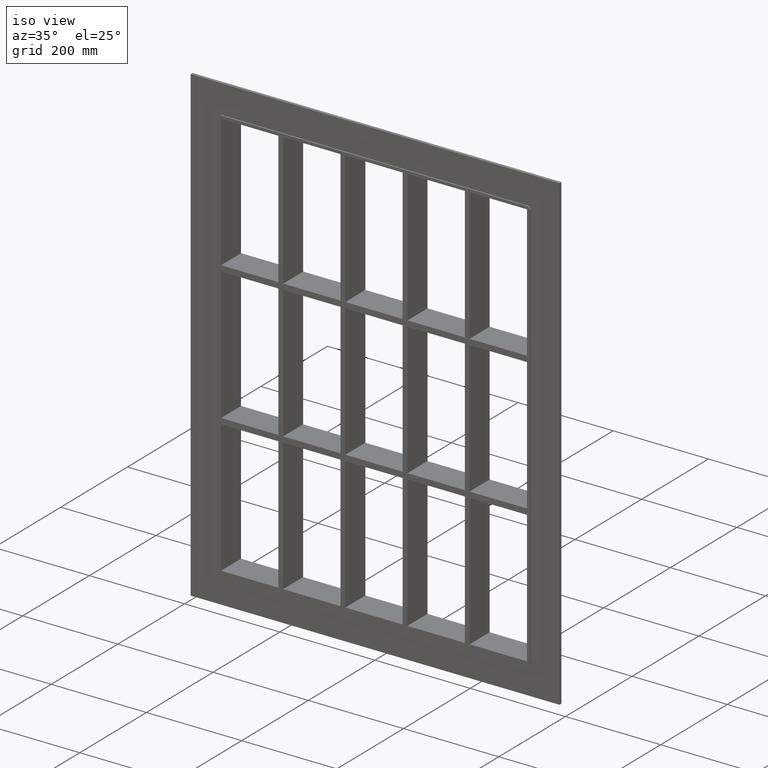
[diagram: clean part render]
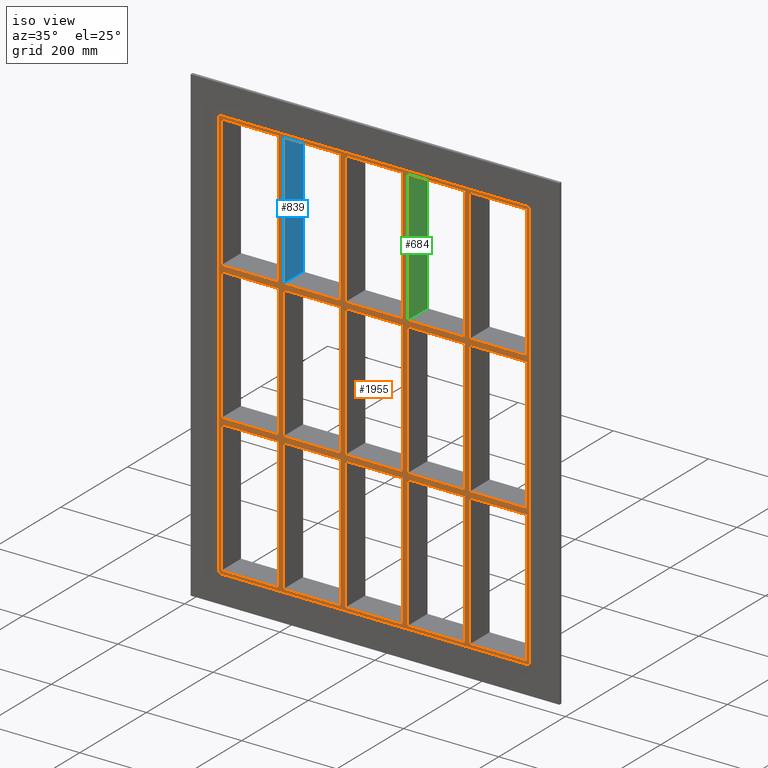
[diagram: same view with three faces highlighted in distinct colors, each labeled with its STEP entity id]
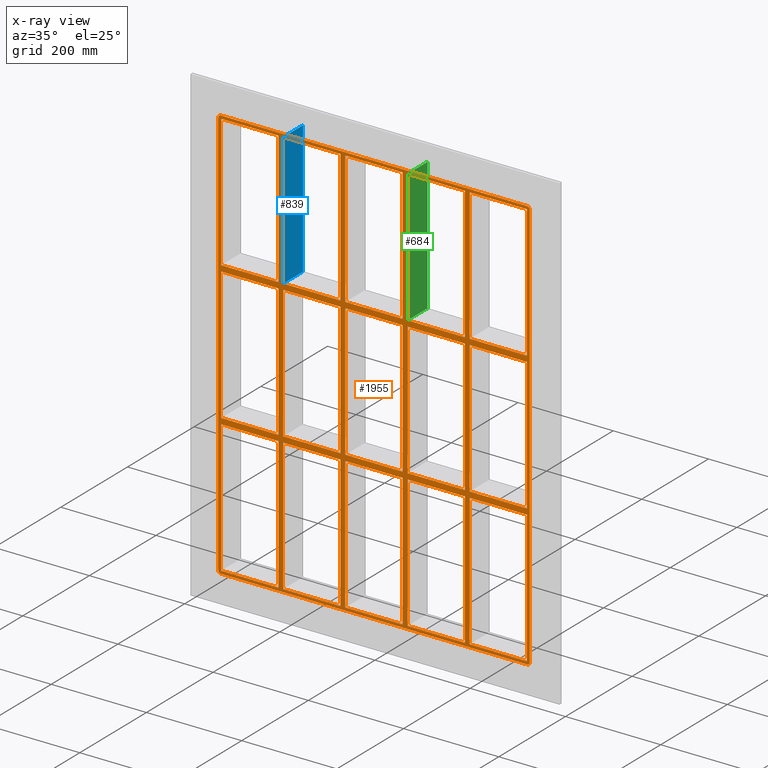
[diagram: x-ray of the same camera — body ghosted, the three highlighted faces saturated]
A machine part, iso view with three faces highlighted in distinct colors.
The next image is the same camera in x-ray (body ghosted, the three faces saturated) — at least one of them is partly hidden behind the body in this view.
Their STEP definitions:

[orange] entity #1955 — the highlighted planar face has unit normal (0, 1, 0).
#73=CARTESIAN_POINT('',(-200.75000000000128,-3.0,138.99999999999068));
#74=VERTEX_POINT('',#73);
#83=CARTESIAN_POINT('',(-321.24999999999955,-3.0,138.99999999999068));
#84=VERTEX_POINT('',#83);
#85=CARTESIAN_POINT('',(-200.75000000000136,-3.0,138.99999999999068));
#86=DIRECTION('',(-1.0,0.0,0.0));
#87=VECTOR('',#86,120.49999999999818);
#88=LINE('',#85,#87);
#89=EDGE_CURVE('',#74,#84,#88,.T.);
#113=CARTESIAN_POINT('',(-70.250000000001265,-3.0,138.99999999999071));
#114=VERTEX_POINT('',#113);
#123=CARTESIAN_POINT('',(-190.75000000000728,-3.0,138.99999999999071));
#124=VERTEX_POINT('',#123);
#125=CARTESIAN_POINT('',(-70.250000000001251,-3.0,138.99999999999071));
#126=DIRECTION('',(-1.0,0.0,0.0));
#127=VECTOR('',#126,120.50000000000603);
#128=LINE('',#125,#127);
#129=EDGE_CURVE('',#114,#124,#128,.T.);
#153=CARTESIAN_POINT('',(60.249999999998742,-3.0,138.99999999999071));
#154=VERTEX_POINT('',#153);
#163=CARTESIAN_POINT('',(-60.250000000007304,-3.0,138.99999999999071));
#164=VERTEX_POINT('',#163);
#165=CARTESIAN_POINT('',(60.249999999998749,-3.0,138.99999999999071));
#166=DIRECTION('',(-1.0,0.0,0.0));
#167=VECTOR('',#166,120.50000000000603);
#168=LINE('',#165,#167);
#169=EDGE_CURVE('',#154,#164,#168,.T.);
#195=CARTESIAN_POINT('',(200.74999999999278,-3.0,138.99999999999071));
#196=VERTEX_POINT('',#195);
#211=CARTESIAN_POINT('',(321.25,-3.0,138.99999999999073));
#212=VERTEX_POINT('',#211);
#219=CARTESIAN_POINT('',(321.25,-3.0,138.99999999999073));
#220=DIRECTION('',(-1.0,0.0,0.0));
#221=VECTOR('',#220,120.50000000000722);
#222=LINE('',#219,#221);
#223=EDGE_CURVE('',#212,#196,#222,.T.);
#233=CARTESIAN_POINT('',(190.74999999999875,-3.0,138.99999999999071));
#234=VERTEX_POINT('',#233);
#243=CARTESIAN_POINT('',(70.249999999992738,-3.0,138.99999999999071));
#244=VERTEX_POINT('',#243);
#245=CARTESIAN_POINT('',(190.74999999999875,-3.0,138.99999999999073));
#246=DIRECTION('',(-1.0,0.0,0.0));
#247=VECTOR('',#246,120.50000000000603);
#248=LINE('',#245,#247);
#249=EDGE_CURVE('',#234,#244,#248,.T.);
#275=CARTESIAN_POINT('',(-200.75000000000128,-3.0,150.99999999999994));
#276=VERTEX_POINT('',#275);
#291=CARTESIAN_POINT('',(-321.24999999999955,-3.0,150.99999999999994));
#292=VERTEX_POINT('',#291);
#299=CARTESIAN_POINT('',(-321.24999999999955,-3.0,150.99999999999994));
#300=DIRECTION('',(1.0,0.0,0.0));
#301=VECTOR('',#300,120.49999999999829);
#302=LINE('',#299,#301);
#303=EDGE_CURVE('',#292,#276,#302,.T.);
#313=CARTESIAN_POINT('',(200.74999999999278,-3.0,150.99999999999994));
#314=VERTEX_POINT('',#313);
#323=CARTESIAN_POINT('',(321.25,-3.0,150.99999999999994));
#324=VERTEX_POINT('',#323);
#325=CARTESIAN_POINT('',(200.74999999999284,-3.0,150.99999999999994));
#326=DIRECTION('',(1.0,0.0,0.0));
#327=VECTOR('',#326,120.50000000000716);
#328=LINE('',#325,#327);
#329=EDGE_CURVE('',#314,#324,#328,.T.);
#355=CARTESIAN_POINT('',(-70.250000000001265,-3.0,150.99999999999994));
#356=VERTEX_POINT('',#355);
#371=CARTESIAN_POINT('',(-190.75000000000728,-3.0,150.99999999999994));
#372=VERTEX_POINT('',#371);
#379=CARTESIAN_POINT('',(-190.75000000000725,-3.0,150.99999999999994));
#380=DIRECTION('',(1.0,0.0,0.0));
#381=VECTOR('',#380,120.500000000006);
#382=LINE('',#379,#381);
#383=EDGE_CURVE('',#372,#356,#382,.T.);
#395=CARTESIAN_POINT('',(60.249999999998707,-3.0,150.99999999999994));
#396=VERTEX_POINT('',#395);
#411=CARTESIAN_POINT('',(-60.250000000007269,-3.0,150.99999999999994));
#412=VERTEX_POINT('',#411);
#419=CARTESIAN_POINT('',(-60.250000000007219,-3.0,150.99999999999994));
#420=DIRECTION('',(1.0,0.0,0.0));
#421=VECTOR('',#420,120.50000000000597);
#422=LINE('',#419,#421);
#423=EDGE_CURVE('',#412,#396,#422,.T.);
#435=CARTESIAN_POINT('',(190.74999999999875,-3.0,150.99999999999994));
#436=VERTEX_POINT('',#435);
#451=CARTESIAN_POINT('',(70.249999999992738,-3.0,150.99999999999994));
#452=VERTEX_POINT('',#451);
#459=CARTESIAN_POINT('',(70.249999999992781,-3.0,150.99999999999994));
#460=DIRECTION('',(1.0,0.0,0.0));
#461=VECTOR('',#460,120.50000000000597);
#462=LINE('',#459,#461);
#463=EDGE_CURVE('',#452,#436,#462,.T.);
#482=CARTESIAN_POINT('',(-321.24999999999994,-3.0,429.00000000000006));
#483=VERTEX_POINT('',#482);
#490=CARTESIAN_POINT('',(-321.25,-3.0,151.0));
#491=DIRECTION('',(0.0,0.0,1.0));
#492=VECTOR('',#491,278.00000000000011);
#493=LINE('',#490,#492);
#494=EDGE_CURVE('',#292,#483,#493,.T.);
#513=CARTESIAN_POINT('',(321.25,-3.0,-139.00000000000006));
#514=VERTEX_POINT('',#513);
#521=CARTESIAN_POINT('',(321.25000000000006,-3.0,138.99999999999073));
#522=DIRECTION('',(0.0,0.0,-1.0));
#523=VECTOR('',#522,277.99999999999079);
#524=LINE('',#521,#523);
#525=EDGE_CURVE('',#212,#514,#524,.T.);
#536=CARTESIAN_POINT('',(321.25000000000006,-3.0,429.00000000000006));
#537=VERTEX_POINT('',#536);
#538=CARTESIAN_POINT('',(321.25000000000006,-3.0,429.00000000000006));
#539=DIRECTION('',(0.0,0.0,-1.0));
#540=VECTOR('',#539,278.00000000000011);
#541=LINE('',#538,#540);
#542=EDGE_CURVE('',#537,#324,#541,.T.);
#567=CARTESIAN_POINT('',(190.74999999999875,-3.0,429.00000000000006));
#568=VERTEX_POINT('',#567);
#569=CARTESIAN_POINT('',(190.74999999999875,-3.0,150.99999999999994));
#570=DIRECTION('',(0.0,0.0,1.0));
#571=VECTOR('',#570,278.00000000000011);
#572=LINE('',#569,#571);
#573=EDGE_CURVE('',#436,#568,#572,.T.);
#606=CARTESIAN_POINT('',(200.74999999999278,-3.0,429.00000000000006));
#607=VERTEX_POINT('',#606);
#614=CARTESIAN_POINT('',(200.74999999999278,-3.0,429.00000000000006));
#615=DIRECTION('',(0.0,0.0,-1.0));
#616=VECTOR('',#615,278.00000000000011);
#617=LINE('',#614,#616);
#618=EDGE_CURVE('',#607,#314,#617,.T.);
#629=CARTESIAN_POINT('',(60.249999999998707,-3.0,429.00000000000006));
#630=VERTEX_POINT('',#629);
#631=CARTESIAN_POINT('',(60.249999999998728,-3.0,150.99999999999994));
#632=DIRECTION('',(0.0,0.0,1.0));
#633=VECTOR('',#632,278.00000000000011);
#634=LINE('',#631,#633);
#635=EDGE_CURVE('',#396,#630,#634,.T.);
#668=CARTESIAN_POINT('',(70.249999999992738,-3.0,429.00000000000006));
#669=VERTEX_POINT('',#668);
#676=CARTESIAN_POINT('',(70.249999999992738,-3.0,429.00000000000006));
#677=DIRECTION('',(0.0,0.0,-1.0));
#678=VECTOR('',#677,278.00000000000011);
#679=LINE('',#676,#678);
#680=EDGE_CURVE('',#669,#452,#679,.T.);
#691=CARTESIAN_POINT('',(-70.250000000001307,-3.0,429.00000000000006));
#692=VERTEX_POINT('',#691);
#693=CARTESIAN_POINT('',(-70.250000000001265,-3.0,150.99999999999994));
#694=DIRECTION('',(0.0,0.0,1.0));
#695=VECTOR('',#694,278.00000000000011);
#696=LINE('',#693,#695);
#697=EDGE_CURVE('',#356,#692,#696,.T.);
#730=CARTESIAN_POINT('',(-60.250000000007269,-3.0,429.00000000000006));
#731=VERTEX_POINT('',#730);
#738=CARTESIAN_POINT('',(-60.250000000007269,-3.0,429.00000000000006));
#739=DIRECTION('',(0.0,0.0,-1.0));
#740=VECTOR('',#739,278.00000000000011);
#741=LINE('',#738,#740);
#742=EDGE_CURVE('',#731,#412,#741,.T.);
#753=CARTESIAN_POINT('',(-200.75000000000131,-3.0,429.00000000000006));
#754=VERTEX_POINT('',#753);
#755=CARTESIAN_POINT('',(-200.75000000000131,-3.0,150.99999999999994));
#756=DIRECTION('',(0.0,0.0,1.0));
#757=VECTOR('',#756,278.00000000000011);
#758=LINE('',#755,#757);
#759=EDGE_CURVE('',#276,#754,#758,.T.);
#792=CARTESIAN_POINT('',(-200.75000000000125,-3.0,-139.00000000000006));
#793=VERTEX_POINT('',#792);
#800=CARTESIAN_POINT('',(-200.75000000000128,-3.0,-139.00000000000006));
#801=DIRECTION('',(0.0,0.0,1.0));
#802=VECTOR('',#801,277.99999999999068);
#803=LINE('',#800,#802);
#804=EDGE_CURVE('',#793,#74,#803,.T.);
#823=CARTESIAN_POINT('',(-190.75000000000728,-3.0,429.00000000000006));
#824=VERTEX_POINT('',#823);
#831=CARTESIAN_POINT('',(-190.75000000000728,-3.0,429.00000000000006));
#832=DIRECTION('',(0.0,0.0,-1.0));
#833=VECTOR('',#832,278.00000000000011);
#834=LINE('',#831,#833);
#835=EDGE_CURVE('',#824,#372,#834,.T.);
#1259=CARTESIAN_POINT('',(190.74999999999878,-3.0,-139.00000000000006));
#1260=VERTEX_POINT('',#1259);
#1267=CARTESIAN_POINT('',(190.74999999999878,-3.0,-139.00000000000006));
#1268=DIRECTION('',(0.0,0.0,1.0));
#1269=VECTOR('',#1268,277.99999999999068);
#1270=LINE('',#1267,#1269);
#1271=EDGE_CURVE('',#1260,#234,#1270,.T.);
#1281=CARTESIAN_POINT('',(190.74999999999878,-3.0,-151.00000000000927));
#1282=VERTEX_POINT('',#1281);
#1290=CARTESIAN_POINT('',(190.74999999999881,-3.0,-429.00000000000006));
#1291=VERTEX_POINT('',#1290);
#1298=CARTESIAN_POINT('',(190.74999999999881,-3.0,-429.00000000000006));
#1299=DIRECTION('',(0.0,0.0,1.0));
#1300=VECTOR('',#1299,277.99999999999079);
#1301=LINE('',#1298,#1300);
#1302=EDGE_CURVE('',#1291,#1282,#1301,.T.);
#1313=CARTESIAN_POINT('',(200.74999999999278,-3.0,-139.00000000000006));
#1314=VERTEX_POINT('',#1313);
#1315=CARTESIAN_POINT('',(200.74999999999278,-3.0,138.99999999999073));
#1316=DIRECTION('',(0.0,0.0,-1.0));
#1317=VECTOR('',#1316,277.99999999999079);
#1318=LINE('',#1315,#1317);
#1319=EDGE_CURVE('',#196,#1314,#1318,.T.);
#1336=CARTESIAN_POINT('',(200.74999999999278,-3.0,-151.00000000000927));
#1337=VERTEX_POINT('',#1336);
#1344=CARTESIAN_POINT('',(200.74999999999278,-3.0,-428.99999999998431));
#1345=VERTEX_POINT('',#1344);
#1346=CARTESIAN_POINT('',(200.74999999999278,-3.0,-151.00000000000927));
#1347=DIRECTION('',(0.0,0.0,-1.0));
#1348=VECTOR('',#1347,277.99999999997499);
#1349=LINE('',#1346,#1348);
#1350=EDGE_CURVE('',#1337,#1345,#1349,.T.);
#1369=CARTESIAN_POINT('',(60.249999999998749,-3.0,-139.00000000000006));
#1370=VERTEX_POINT('',#1369);
#1377=CARTESIAN_POINT('',(60.249999999998757,-3.0,-139.00000000000006));
#1378=DIRECTION('',(0.0,0.0,1.0));
#1379=VECTOR('',#1378,277.99999999999068);
#1380=LINE('',#1377,#1379);
#1381=EDGE_CURVE('',#1370,#154,#1380,.T.);
#1391=CARTESIAN_POINT('',(60.249999999998749,-3.0,-151.00000000000929));
#1392=VERTEX_POINT('',#1391);
#1400=CARTESIAN_POINT('',(60.249999999998778,-3.0,-429.00000000000006));
#1401=VERTEX_POINT('',#1400);
#1408=CARTESIAN_POINT('',(60.249999999998778,-3.0,-429.00000000000006));
#1409=DIRECTION('',(0.0,0.0,1.0));
#1410=VECTOR('',#1409,277.99999999999079);
#1411=LINE('',#1408,#1410);
#1412=EDGE_CURVE('',#1401,#1392,#1411,.T.);
#1423=CARTESIAN_POINT('',(70.249999999992738,-3.0,-139.00000000000006));
#1424=VERTEX_POINT('',#1423);
#1425=CARTESIAN_POINT('',(70.249999999992738,-3.0,138.99999999999073));
#1426=DIRECTION('',(0.0,0.0,-1.0));
#1427=VECTOR('',#1426,277.99999999999079);
#1428=LINE('',#1425,#1427);
#1429=EDGE_CURVE('',#244,#1424,#1428,.T.);
#1446=CARTESIAN_POINT('',(70.249999999992738,-3.0,-151.00000000000927));
#1447=VERTEX_POINT('',#1446);
#1454=CARTESIAN_POINT('',(70.249999999992738,-3.0,-428.99999999998431));
#1455=VERTEX_POINT('',#1454);
#1456=CARTESIAN_POINT('',(70.249999999992738,-3.0,-151.00000000000927));
#1457=DIRECTION('',(0.0,0.0,-1.0));
#1458=VECTOR('',#1457,277.99999999997499);
#1459=LINE('',#1456,#1458);
#1460=EDGE_CURVE('',#1447,#1455,#1459,.T.);
#1479=CARTESIAN_POINT('',(-70.250000000001251,-3.0,-139.00000000000006));
#1480=VERTEX_POINT('',#1479);
#1487=CARTESIAN_POINT('',(-70.250000000001251,-3.0,-139.00000000000006));
#1488=DIRECTION('',(0.0,0.0,1.0));
#1489=VECTOR('',#1488,277.99999999999068);
#1490=LINE('',#1487,#1489);
#1491=EDGE_CURVE('',#1480,#114,#1490,.T.);
#1501=CARTESIAN_POINT('',(-70.250000000001251,-3.0,-151.00000000000929));
#1502=VERTEX_POINT('',#1501);
#1510=CARTESIAN_POINT('',(-70.250000000001222,-3.0,-429.00000000000006));
#1511=VERTEX_POINT('',#1510);
#1518=CARTESIAN_POINT('',(-70.250000000001222,-3.0,-429.00000000000006));
#1519=DIRECTION('',(0.0,0.0,1.0));
#1520=VECTOR('',#1519,277.99999999999079);
#1521=LINE('',#1518,#1520);
#1522=EDGE_CURVE('',#1511,#1502,#1521,.T.);
#1533=CARTESIAN_POINT('',(-60.250000000007269,-3.0,-139.00000000000006));
#1534=VERTEX_POINT('',#1533);
#1535=CARTESIAN_POINT('',(-60.250000000007269,-3.0,138.99999999999068));
#1536=DIRECTION('',(0.0,0.0,-1.0));
#1537=VECTOR('',#1536,277.99999999999073);
#1538=LINE('',#1535,#1537);
#1539=EDGE_CURVE('',#164,#1534,#1538,.T.);
#1556=CARTESIAN_POINT('',(-60.250000000007269,-3.0,-151.00000000000927));
#1557=VERTEX_POINT('',#1556);
#1564=CARTESIAN_POINT('',(-60.250000000007269,-3.0,-428.99999999998431));
#1565=VERTEX_POINT('',#1564);
#1566=CARTESIAN_POINT('',(-60.250000000007269,-3.0,-151.00000000000927));
#1567=DIRECTION('',(0.0,0.0,-1.0));
#1568=VECTOR('',#1567,277.99999999997499);
#1569=LINE('',#1566,#1568);
#1570=EDGE_CURVE('',#1557,#1565,#1569,.T.);
#1589=CARTESIAN_POINT('',(-190.75000000000728,-3.0,-428.99999999998431));
#1590=VERTEX_POINT('',#1589);
#1597=CARTESIAN_POINT('',(-70.250000000001222,-3.0,-429.00000000000006));
#1598=DIRECTION('',(-1.0,0.0,0.0));
#1599=VECTOR('',#1598,120.50000000000605);
#1600=LINE('',#1597,#1599);
#1601=EDGE_CURVE('',#1511,#1590,#1600,.T.);
#1614=CARTESIAN_POINT('',(60.249999999998778,-3.0,-429.00000000000006));
#1615=DIRECTION('',(-1.0,0.0,0.0));
#1616=VECTOR('',#1615,120.50000000000605);
#1617=LINE('',#1614,#1616);
#1618=EDGE_CURVE('',#1401,#1565,#1617,.T.);
#1631=CARTESIAN_POINT('',(190.74999999999881,-3.0,-429.00000000000006));
#1632=DIRECTION('',(-1.0,0.0,0.0));
#1633=VECTOR('',#1632,120.50000000000607);
#1634=LINE('',#1631,#1633);
#1635=EDGE_CURVE('',#1291,#1455,#1634,.T.);
#1646=CARTESIAN_POINT('',(321.25000000000006,-3.0,-429.00000000000006));
#1647=VERTEX_POINT('',#1646);
#1648=CARTESIAN_POINT('',(321.25000000000006,-3.0,-429.00000000000006));
#1649=DIRECTION('',(-1.0,0.0,0.0));
#1650=VECTOR('',#1649,120.50000000000728);
#1651=LINE('',#1648,#1650);
#1652=EDGE_CURVE('',#1647,#1345,#1651,.T.);
#1664=CARTESIAN_POINT('',(-7.118245E-014,-3.0,7.830186E-014));
#1665=DIRECTION('',(0.0,1.0,0.0));
#1666=DIRECTION('',(0.0,0.0,1.0));
#1667=AXIS2_PLACEMENT_3D('',#1664,#1665,#1666);
#1668=PLANE('',#1667);
#1669=CARTESIAN_POINT('',(327.24999999999994,-3.0,-428.99999999999989));
#1670=VERTEX_POINT('',#1669);
#1671=CARTESIAN_POINT('',(321.25,-3.0,-435.0));
#1672=VERTEX_POINT('',#1671);
#1673=CARTESIAN_POINT('',(321.25,-3.0,-428.99999999999989));
#1674=DIRECTION('',(0.0,1.0,0.0));
#1675=DIRECTION('',(0.707106781186539,0.0,-0.707106781186556));
#1676=AXIS2_PLACEMENT_3D('',#1673,#1674,#1675);
#1677=CIRCLE('',#1676,6.000000000000001);
#1678=EDGE_CURVE('',#1670,#1672,#1677,.T.);
#1679=ORIENTED_EDGE('',*,*,#1678,.F.);
#1680=CARTESIAN_POINT('',(327.24999999999994,-3.0,429.00000000000011));
#1681=VERTEX_POINT('',#1680);
#1682=CARTESIAN_POINT('',(327.24999999999994,-3.0,-428.99999999999989));
#1683=DIRECTION('',(0.0,0.0,1.0));
#1684=VECTOR('',#1683,858.0);
#1685=LINE('',#1682,#1684);
#1686=EDGE_CURVE('',#1670,#1681,#1685,.T.);
#1687=ORIENTED_EDGE('',*,*,#1686,.T.);
#1688=CARTESIAN_POINT('',(321.24999999999989,-3.0,435.00000000000011));
#1689=VERTEX_POINT('',#1688);
#1690=CARTESIAN_POINT('',(321.24999999999989,-3.0,429.00000000000011));
#1691=DIRECTION('',(0.0,1.0,0.0));
#1692=DIRECTION('',(0.707106781186547,0.0,0.707106781186547));
#1693=AXIS2_PLACEMENT_3D('',#1690,#1691,#1692);
#1694=CIRCLE('',#1693,6.0);
#1695=EDGE_CURVE('',#1689,#1681,#1694,.T.);
#1696=ORIENTED_EDGE('',*,*,#1695,.F.);
#1697=CARTESIAN_POINT('',(-321.25000000000011,-3.0,435.00000000000011));
#1698=VERTEX_POINT('',#1697);
#1699=CARTESIAN_POINT('',(321.24999999999989,-3.0,435.00000000000011));
#1700=DIRECTION('',(-1.0,0.0,0.0));
#1701=VECTOR('',#1700,642.5);
#1702=LINE('',#1699,#1701);
#1703=EDGE_CURVE('',#1689,#1698,#1702,.T.);
#1704=ORIENTED_EDGE('',*,*,#1703,.T.);
#1705=CARTESIAN_POINT('',(-327.25000000000011,-3.0,429.00000000000006));
#1706=VERTEX_POINT('',#1705);
#1707=CARTESIAN_POINT('',(-321.25000000000011,-3.0,429.00000000000006));
#1708=DIRECTION('',(0.0,1.0,0.0));
#1709=DIRECTION('',(-0.707106781186539,0.0,0.707106781186556));
#1710=AXIS2_PLACEMENT_3D('',#1707,#1708,#1709);
#1711=CIRCLE('',#1710,6.000000000000001);
#1712=EDGE_CURVE('',#1706,#1698,#1711,.T.);
#1713=ORIENTED_EDGE('',*,*,#1712,.F.);
#1714=CARTESIAN_POINT('',(-327.25000000000011,-3.0,-429.00000000000006));
#1715=VERTEX_POINT('',#1714);
#1716=CARTESIAN_POINT('',(-327.25000000000011,-3.0,429.0));
#1717=DIRECTION('',(0.0,0.0,-1.0));
#1718=VECTOR('',#1717,858.0);
#1719=LINE('',#1716,#1718);
#1720=EDGE_CURVE('',#1706,#1715,#1719,.T.);
#1721=ORIENTED_EDGE('',*,*,#1720,.T.);
#1722=CARTESIAN_POINT('',(-321.25,-3.0,-435.0));
#1723=VERTEX_POINT('',#1722);
#1724=CARTESIAN_POINT('',(-321.25,-3.0,-429.00000000000006));
#1725=DIRECTION('',(0.0,1.0,0.0));
#1726=DIRECTION('',(-0.707106781186556,0.0,-0.707106781186539));
#1727=AXIS2_PLACEMENT_3D('',#1724,#1725,#1726);
#1728=CIRCLE('',#1727,6.000000000000001);
#1729=EDGE_CURVE('',#1723,#1715,#1728,.T.);
#1730=ORIENTED_EDGE('',*,*,#1729,.F.);
#1731=CARTESIAN_POINT('',(-321.25000000000006,-3.0,-435.0));
#1732=DIRECTION('',(1.0,0.0,0.0));
#1733=VECTOR('',#1732,642.5);
#1734=LINE('',#1731,#1733);
#1735=EDGE_CURVE('',#1723,#1672,#1734,.T.);
#1736=ORIENTED_EDGE('',*,*,#1735,.T.);
#1737=EDGE_LOOP('',(#1679,#1687,#1696,#1704,#1713,#1721,#1730,#1736));
#1738=FACE_OUTER_BOUND('',#1737,.T.);
#1739=ORIENTED_EDGE('',*,*,#494,.T.);
#1740=CARTESIAN_POINT('',(-321.24999999999989,-3.0,429.00000000000006));
#1741=DIRECTION('',(1.0,0.0,0.0));
#1742=VECTOR('',#1741,120.49999999999858);
#1743=LINE('',#1740,#1742);
#1744=EDGE_CURVE('',#483,#754,#1743,.T.);
#1745=ORIENTED_EDGE('',*,*,#1744,.T.);
#1746=ORIENTED_EDGE('',*,*,#759,.F.);
#1747=ORIENTED_EDGE('',*,*,#303,.F.);
#1748=EDGE_LOOP('',(#1739,#1745,#1746,#1747));
#1749=FACE_BOUND('',#1748,.T.);
#1750=ORIENTED_EDGE('',*,*,#525,.T.);
#1751=CARTESIAN_POINT('',(200.74999999999284,-3.0,-139.00000000000006));
#1752=DIRECTION('',(1.0,0.0,0.0));
#1753=VECTOR('',#1752,120.50000000000716);
#1754=LINE('',#1751,#1753);
#1755=EDGE_CURVE('',#1314,#514,#1754,.T.);
#1756=ORIENTED_EDGE('',*,*,#1755,.F.);
#1757=ORIENTED_EDGE('',*,*,#1319,.F.);
#1758=ORIENTED_EDGE('',*,*,#223,.F.);
#1759=EDGE_LOOP('',(#1750,#1756,#1757,#1758));
#1760=FACE_BOUND('',#1759,.T.);
#1761=ORIENTED_EDGE('',*,*,#1271,.F.);
#1762=CARTESIAN_POINT('',(70.249999999992781,-3.0,-139.00000000000006));
#1763=DIRECTION('',(1.0,0.0,0.0));
#1764=VECTOR('',#1763,120.50000000000597);
#1765=LINE('',#1762,#1764);
#1766=EDGE_CURVE('',#1424,#1260,#1765,.T.);
#1767=ORIENTED_EDGE('',*,*,#1766,.F.);
#1768=ORIENTED_EDGE('',*,*,#1429,.F.);
#1769=ORIENTED_EDGE('',*,*,#249,.F.);
#1770=EDGE_LOOP('',(#1761,#1767,#1768,#1769));
#1771=FACE_BOUND('',#1770,.T.);
#1772=ORIENTED_EDGE('',*,*,#1381,.F.);
#1773=CARTESIAN_POINT('',(-60.250000000007219,-3.0,-139.00000000000006));
#1774=DIRECTION('',(1.0,0.0,0.0));
#1775=VECTOR('',#1774,120.50000000000603);
#1776=LINE('',#1773,#1775);
#1777=EDGE_CURVE('',#1534,#1370,#1776,.T.);
#1778=ORIENTED_EDGE('',*,*,#1777,.F.);
#1779=ORIENTED_EDGE('',*,*,#1539,.F.);
#1780=ORIENTED_EDGE('',*,*,#169,.F.);
#1781=EDGE_LOOP('',(#1772,#1778,#1779,#1780));
#1782=FACE_BOUND('',#1781,.T.);
#1783=ORIENTED_EDGE('',*,*,#1491,.F.);
#1784=CARTESIAN_POINT('',(-190.75000000000728,-3.0,-139.00000000000006));
#1785=VERTEX_POINT('',#1784);
#1786=CARTESIAN_POINT('',(-190.75000000000725,-3.0,-139.00000000000006));
#1787=DIRECTION('',(1.0,0.0,0.0));
#1788=VECTOR('',#1787,120.500000000006);
#1789=LINE('',#1786,#1788);
#1790=EDGE_CURVE('',#1785,#1480,#1789,.T.);
#1791=ORIENTED_EDGE('',*,*,#1790,.F.);
#1792=CARTESIAN_POINT('',(-190.75000000000728,-3.0,138.99999999999073));
#1793=DIRECTION('',(0.0,0.0,-1.0));
#1794=VECTOR('',#1793,277.99999999999079);
#1795=LINE('',#1792,#1794);
#1796=EDGE_CURVE('',#124,#1785,#1795,.T.);
#1797=ORIENTED_EDGE('',*,*,#1796,.F.);
#1798=ORIENTED_EDGE('',*,*,#129,.F.);
#1799=EDGE_LOOP('',(#1783,#1791,#1797,#1798));
#1800=FACE_BOUND('',#1799,.T.);
#1801=ORIENTED_EDGE('',*,*,#463,.F.);
#1802=ORIENTED_EDGE('',*,*,#680,.F.);
#1803=CARTESIAN_POINT('',(70.249999999992752,-3.0,429.00000000000006));
#1804=DIRECTION('',(1.0,0.0,0.0));
#1805=VECTOR('',#1804,120.50000000000597);
#1806=LINE('',#1803,#1805);
#1807=EDGE_CURVE('',#669,#568,#1806,.T.);
#1808=ORIENTED_EDGE('',*,*,#1807,.T.);
#1809=ORIENTED_EDGE('',*,*,#573,.F.);
#1810=EDGE_LOOP('',(#1801,#1802,#1808,#1809));
#1811=FACE_BOUND('',#1810,.T.);
#1812=ORIENTED_EDGE('',*,*,#423,.F.);
#1813=ORIENTED_EDGE('',*,*,#742,.F.);
#1814=CARTESIAN_POINT('',(-60.250000000007262,-3.0,429.00000000000006));
#1815=DIRECTION('',(1.0,0.0,0.0));
#1816=VECTOR('',#1815,120.50000000000598);
#1817=LINE('',#1814,#1816);
#1818=EDGE_CURVE('',#731,#630,#1817,.T.);
#1819=ORIENTED_EDGE('',*,*,#1818,.T.);
#1820=ORIENTED_EDGE('',*,*,#635,.F.);
#1821=EDGE_LOOP('',(#1812,#1813,#1819,#1820));
#1822=FACE_BOUND('',#1821,.T.);
#1823=ORIENTED_EDGE('',*,*,#383,.F.);
#1824=ORIENTED_EDGE('',*,*,#835,.F.);
#1825=CARTESIAN_POINT('',(-190.75000000000728,-3.0,429.00000000000006));
#1826=DIRECTION('',(1.0,0.0,0.0));
#1827=VECTOR('',#1826,120.50000000000598);
#1828=LINE('',#1825,#1827);
#1829=EDGE_CURVE('',#824,#692,#1828,.T.);
#1830=ORIENTED_EDGE('',*,*,#1829,.T.);
#1831=ORIENTED_EDGE('',*,*,#697,.F.);
#1832=EDGE_LOOP('',(#1823,#1824,#1830,#1831));
#1833=FACE_BOUND('',#1832,.T.);
#1834=ORIENTED_EDGE('',*,*,#89,.F.);
#1835=ORIENTED_EDGE('',*,*,#804,.F.);
#1836=CARTESIAN_POINT('',(-321.24999999999955,-3.0,-139.00000000000006));
#1837=VERTEX_POINT('',#1836);
#1838=CARTESIAN_POINT('',(-321.24999999999955,-3.0,-139.00000000000006));
#1839=DIRECTION('',(1.0,0.0,0.0));
#1840=VECTOR('',#1839,120.49999999999835);
#1841=LINE('',#1838,#1840);
#1842=EDGE_CURVE('',#1837,#793,#1841,.T.);
#1843=ORIENTED_EDGE('',*,*,#1842,.F.);
#1844=CARTESIAN_POINT('',(-321.25,-3.0,-139.00000000000006));
#1845=DIRECTION('',(0.0,0.0,1.0));
#1846=VECTOR('',#1845,277.99999999999073);
#1847=LINE('',#1844,#1846);
#1848=EDGE_CURVE('',#1837,#84,#1847,.T.);
#1849=ORIENTED_EDGE('',*,*,#1848,.T.);
#1850=EDGE_LOOP('',(#1834,#1835,#1843,#1849));
#1851=FACE_BOUND('',#1850,.T.);
#1852=ORIENTED_EDGE('',*,*,#329,.F.);
#1853=ORIENTED_EDGE('',*,*,#618,.F.);
#1854=CARTESIAN_POINT('',(200.74999999999275,-3.0,429.00000000000006));
#1855=DIRECTION('',(1.0,0.0,0.0));
#1856=VECTOR('',#1855,120.50000000000736);
#1857=LINE('',#1854,#1856);
#1858=EDGE_CURVE('',#607,#537,#1857,.T.);
#1859=ORIENTED_EDGE('',*,*,#1858,.T.);
#1860=ORIENTED_EDGE('',*,*,#542,.T.);
#1861=EDGE_LOOP('',(#1852,#1853,#1859,#1860));
#1862=FACE_BOUND('',#1861,.T.);
#1863=ORIENTED_EDGE('',*,*,#1635,.T.);
#1864=ORIENTED_EDGE('',*,*,#1460,.F.);
#1865=CARTESIAN_POINT('',(190.74999999999878,-3.0,-151.00000000000927));
#1866=DIRECTION('',(-1.0,0.0,0.0));
#1867=VECTOR('',#1866,120.50000000000605);
#1868=LINE('',#1865,#1867);
#1869=EDGE_CURVE('',#1282,#1447,#1868,.T.);
#1870=ORIENTED_EDGE('',*,*,#1869,.F.);
#1871=ORIENTED_EDGE('',*,*,#1302,.F.);
#1872=EDGE_LOOP('',(#1863,#1864,#1870,#1871));
#1873=FACE_BOUND('',#1872,.T.);
#1874=ORIENTED_EDGE('',*,*,#1618,.T.);
#1875=ORIENTED_EDGE('',*,*,#1570,.F.);
#1876=CARTESIAN_POINT('',(60.249999999998749,-3.0,-151.00000000000929));
#1877=DIRECTION('',(-1.0,0.0,0.0));
#1878=VECTOR('',#1877,120.50000000000603);
#1879=LINE('',#1876,#1878);
#1880=EDGE_CURVE('',#1392,#1557,#1879,.T.);
#1881=ORIENTED_EDGE('',*,*,#1880,.F.);
#1882=ORIENTED_EDGE('',*,*,#1412,.F.);
#1883=EDGE_LOOP('',(#1874,#1875,#1881,#1882));
#1884=FACE_BOUND('',#1883,.T.);
#1885=ORIENTED_EDGE('',*,*,#1601,.T.);
#1886=CARTESIAN_POINT('',(-190.75000000000728,-3.0,-151.00000000000929));
#1887=VERTEX_POINT('',#1886);
#1888=CARTESIAN_POINT('',(-190.75000000000728,-3.0,-151.00000000000927));
#1889=DIRECTION('',(0.0,0.0,-1.0));
#1890=VECTOR('',#1889,277.99999999997499);
#1891=LINE('',#1888,#1890);
#1892=EDGE_CURVE('',#1887,#1590,#1891,.T.);
#1893=ORIENTED_EDGE('',*,*,#1892,.F.);
#1894=CARTESIAN_POINT('',(-70.250000000001251,-3.0,-151.00000000000929));
#1895=DIRECTION('',(-1.0,0.0,0.0));
#1896=VECTOR('',#1895,120.50000000000603);
#1897=LINE('',#1894,#1896);
#1898=EDGE_CURVE('',#1502,#1887,#1897,.T.);
#1899=ORIENTED_EDGE('',*,*,#1898,.F.);
#1900=ORIENTED_EDGE('',*,*,#1522,.F.);
#1901=EDGE_LOOP('',(#1885,#1893,#1899,#1900));
#1902=FACE_BOUND('',#1901,.T.);
#1903=ORIENTED_EDGE('',*,*,#1350,.F.);
#1904=CARTESIAN_POINT('',(321.25,-3.0,-151.00000000000927));
#1905=VERTEX_POINT('',#1904);
#1906=CARTESIAN_POINT('',(321.25,-3.0,-151.00000000000927));
#1907=DIRECTION('',(-1.0,0.0,0.0));
#1908=VECTOR('',#1907,120.50000000000722);
#1909=LINE('',#1906,#1908);
#1910=EDGE_CURVE('',#1905,#1337,#1909,.T.);
#1911=ORIENTED_EDGE('',*,*,#1910,.F.);
#1912=CARTESIAN_POINT('',(321.25000000000006,-3.0,-151.00000000000927));
#1913=DIRECTION('',(0.0,0.0,-1.0));
#1914=VECTOR('',#1913,277.99999999999079);
#1915=LINE('',#1912,#1914);
#1916=EDGE_CURVE('',#1905,#1647,#1915,.T.);
#1917=ORIENTED_EDGE('',*,*,#1916,.T.);
#1918=ORIENTED_EDGE('',*,*,#1652,.T.);
#1919=EDGE_LOOP('',(#1903,#1911,#1917,#1918));
#1920=FACE_BOUND('',#1919,.T.);
#1921=CARTESIAN_POINT('',(-200.75000000000125,-3.0,-151.00000000000929));
#1922=VERTEX_POINT('',#1921);
#1923=CARTESIAN_POINT('',(-321.24999999999955,-3.0,-151.00000000000932));
#1924=VERTEX_POINT('',#1923);
#1925=CARTESIAN_POINT('',(-200.75000000000125,-3.0,-151.00000000000932));
#1926=DIRECTION('',(-1.0,0.0,0.0));
#1927=VECTOR('',#1926,120.49999999999829);
#1928=LINE('',#1925,#1927);
#1929=EDGE_CURVE('',#1922,#1924,#1928,.T.);
#1930=ORIENTED_EDGE('',*,*,#1929,.F.);
#1931=CARTESIAN_POINT('',(-200.75000000000125,-3.0,-429.00000000000006));
#1932=VERTEX_POINT('',#1931);
#1933=CARTESIAN_POINT('',(-200.75000000000125,-3.0,-429.00000000000006));
#1934=DIRECTION('',(0.0,0.0,1.0));
#1935=VECTOR('',#1934,277.99999999999073);
#1936=LINE('',#1933,#1935);
#1937=EDGE_CURVE('',#1932,#1922,#1936,.T.);
#1938=ORIENTED_EDGE('',*,*,#1937,.F.);
#1939=CARTESIAN_POINT('',(-321.24999999999994,-3.0,-429.00000000000006));
#1940=VERTEX_POINT('',#1939);
#1941=CARTESIAN_POINT('',(-200.75000000000125,-3.0,-429.00000000000006));
#1942=DIRECTION('',(-1.0,0.0,0.0));
#1943=VECTOR('',#1942,120.49999999999869);
#1944=LINE('',#1941,#1943);
#1945=EDGE_CURVE('',#1932,#1940,#1944,.T.);
#1946=ORIENTED_EDGE('',*,*,#1945,.T.);
#1947=CARTESIAN_POINT('',(-321.25,-3.0,-429.00000000000006));
#1948=DIRECTION('',(0.0,0.0,1.0));
#1949=VECTOR('',#1948,277.99999999999073);
#1950=LINE('',#1947,#1949);
#1951=EDGE_CURVE('',#1940,#1924,#1950,.T.);
#1952=ORIENTED_EDGE('',*,*,#1951,.T.);
#1953=EDGE_LOOP('',(#1930,#1938,#1946,#1952));
#1954=FACE_BOUND('',#1953,.T.);
#1955=ADVANCED_FACE('',(#1738,#1749,#1760,#1771,#1782,#1800,#1811,#1822,#1833,#1851,#1862,#1873,#1884,#1902,#1920,#1954),#1668,.F.);

[blue] entity #839 — the highlighted planar face has unit normal (1, 0, 0).
#363=CARTESIAN_POINT('',(-190.75000000000728,57.0,150.99999999999994));
#364=VERTEX_POINT('',#363);
#371=CARTESIAN_POINT('',(-190.75000000000728,-3.0,150.99999999999994));
#372=VERTEX_POINT('',#371);
#373=CARTESIAN_POINT('',(-190.75000000000728,-3.0,150.99999999999994));
#374=DIRECTION('',(0.0,1.0,0.0));
#375=VECTOR('',#374,60.0);
#376=LINE('',#373,#375);
#377=EDGE_CURVE('',#372,#364,#376,.T.);
#809=CARTESIAN_POINT('',(-190.75000000000728,-3.0,429.00000000000006));
#810=DIRECTION('',(1.0,0.0,0.0));
#811=DIRECTION('',(0.0,0.0,-1.0));
#812=AXIS2_PLACEMENT_3D('',#809,#810,#811);
#813=PLANE('',#812);
#814=ORIENTED_EDGE('',*,*,#377,.T.);
#815=CARTESIAN_POINT('',(-190.75000000000728,57.0,429.00000000000006));
#816=VERTEX_POINT('',#815);
#817=CARTESIAN_POINT('',(-190.75000000000728,57.0,429.00000000000006));
#818=DIRECTION('',(0.0,0.0,-1.0));
#819=VECTOR('',#818,278.00000000000011);
#820=LINE('',#817,#819);
#821=EDGE_CURVE('',#816,#364,#820,.T.);
#822=ORIENTED_EDGE('',*,*,#821,.F.);
#823=CARTESIAN_POINT('',(-190.75000000000728,-3.0,429.00000000000006));
#824=VERTEX_POINT('',#823);
#825=CARTESIAN_POINT('',(-190.75000000000728,-3.0,429.00000000000006));
#826=DIRECTION('',(0.0,1.0,0.0));
#827=VECTOR('',#826,60.000000000000007);
#828=LINE('',#825,#827);
#829=EDGE_CURVE('',#824,#816,#828,.T.);
#830=ORIENTED_EDGE('',*,*,#829,.F.);
#831=CARTESIAN_POINT('',(-190.75000000000728,-3.0,429.00000000000006));
#832=DIRECTION('',(0.0,0.0,-1.0));
#833=VECTOR('',#832,278.00000000000011);
#834=LINE('',#831,#833);
#835=EDGE_CURVE('',#824,#372,#834,.T.);
#836=ORIENTED_EDGE('',*,*,#835,.T.);
#837=EDGE_LOOP('',(#814,#822,#830,#836));
#838=FACE_OUTER_BOUND('',#837,.T.);
#839=ADVANCED_FACE('',(#838),#813,.T.);

[green] entity #684 — the highlighted planar face has unit normal (1, 0, 0).
#443=CARTESIAN_POINT('',(70.249999999992738,57.0,150.99999999999994));
#444=VERTEX_POINT('',#443);
#451=CARTESIAN_POINT('',(70.249999999992738,-3.0,150.99999999999994));
#452=VERTEX_POINT('',#451);
#453=CARTESIAN_POINT('',(70.249999999992738,-3.0,150.99999999999994));
#454=DIRECTION('',(0.0,1.0,0.0));
#455=VECTOR('',#454,60.0);
#456=LINE('',#453,#455);
#457=EDGE_CURVE('',#452,#444,#456,.T.);
#654=CARTESIAN_POINT('',(70.249999999992738,-3.0,429.00000000000006));
#655=DIRECTION('',(1.0,0.0,0.0));
#656=DIRECTION('',(0.0,0.0,-1.0));
#657=AXIS2_PLACEMENT_3D('',#654,#655,#656);
#658=PLANE('',#657);
#659=ORIENTED_EDGE('',*,*,#457,.T.);
#660=CARTESIAN_POINT('',(70.249999999992738,57.0,429.00000000000006));
#661=VERTEX_POINT('',#660);
#662=CARTESIAN_POINT('',(70.249999999992738,57.0,429.00000000000006));
#663=DIRECTION('',(0.0,0.0,-1.0));
#664=VECTOR('',#663,278.00000000000011);
#665=LINE('',#662,#664);
#666=EDGE_CURVE('',#661,#444,#665,.T.);
#667=ORIENTED_EDGE('',*,*,#666,.F.);
#668=CARTESIAN_POINT('',(70.249999999992738,-3.0,429.00000000000006));
#669=VERTEX_POINT('',#668);
#670=CARTESIAN_POINT('',(70.249999999992738,-3.0,429.00000000000006));
#671=DIRECTION('',(0.0,1.0,0.0));
#672=VECTOR('',#671,60.000000000000007);
#673=LINE('',#670,#672);
#674=EDGE_CURVE('',#669,#661,#673,.T.);
#675=ORIENTED_EDGE('',*,*,#674,.F.);
#676=CARTESIAN_POINT('',(70.249999999992738,-3.0,429.00000000000006));
#677=DIRECTION('',(0.0,0.0,-1.0));
#678=VECTOR('',#677,278.00000000000011);
#679=LINE('',#676,#678);
#680=EDGE_CURVE('',#669,#452,#679,.T.);
#681=ORIENTED_EDGE('',*,*,#680,.T.);
#682=EDGE_LOOP('',(#659,#667,#675,#681));
#683=FACE_OUTER_BOUND('',#682,.T.);
#684=ADVANCED_FACE('',(#683),#658,.T.);